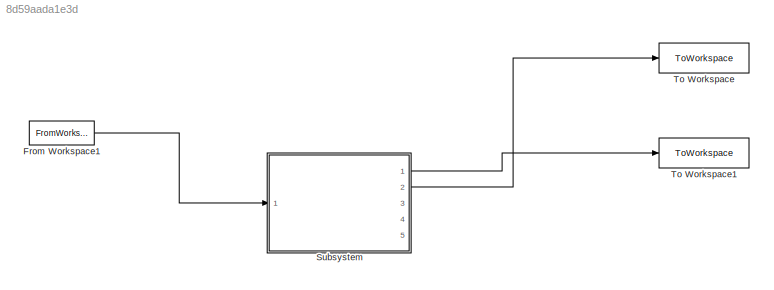
MODEL slx_8d59aada1e3d
KIND model
CONFIG AbsTol = 1e-07
CONFIG EnableMultiTasking = off
CONFIG FixedStep = auto
CONFIG MaxStep = auto
CONFIG MinStep = auto
CONFIG RelTol = 1e-3
CONFIG SampleTimeConstraint = Unconstrained
CONFIG SolverName = ode23t
CONFIG StartTime = 0.0
CONFIG StopTime = 5
WORKSPACE source: mxarray member
WORKSPACE l = 2
WORKSPACE wfb = [0 0 0]
BLOCK [FromWorkspace] From Workspace1
  SampleTime = dt
  VariableName = u_in
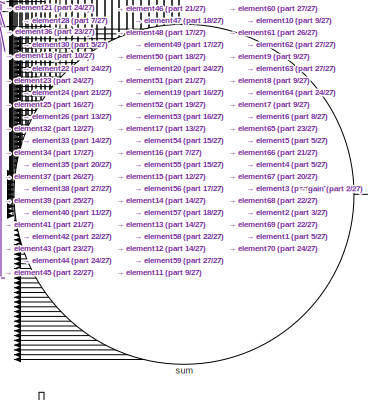
[diagram: Subsystem - part 1/27, top right region]
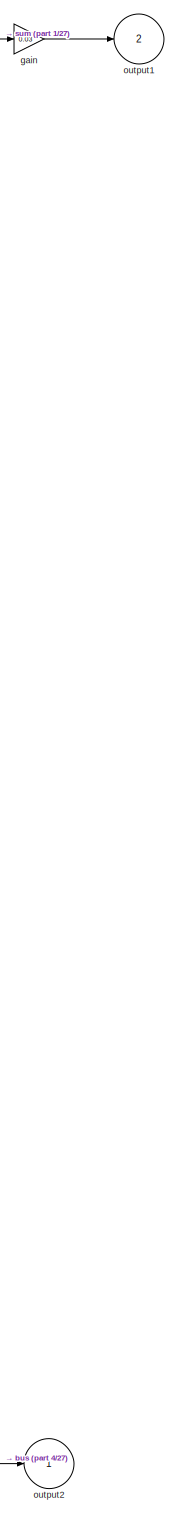
[diagram: Subsystem - part 2/27, top right region]
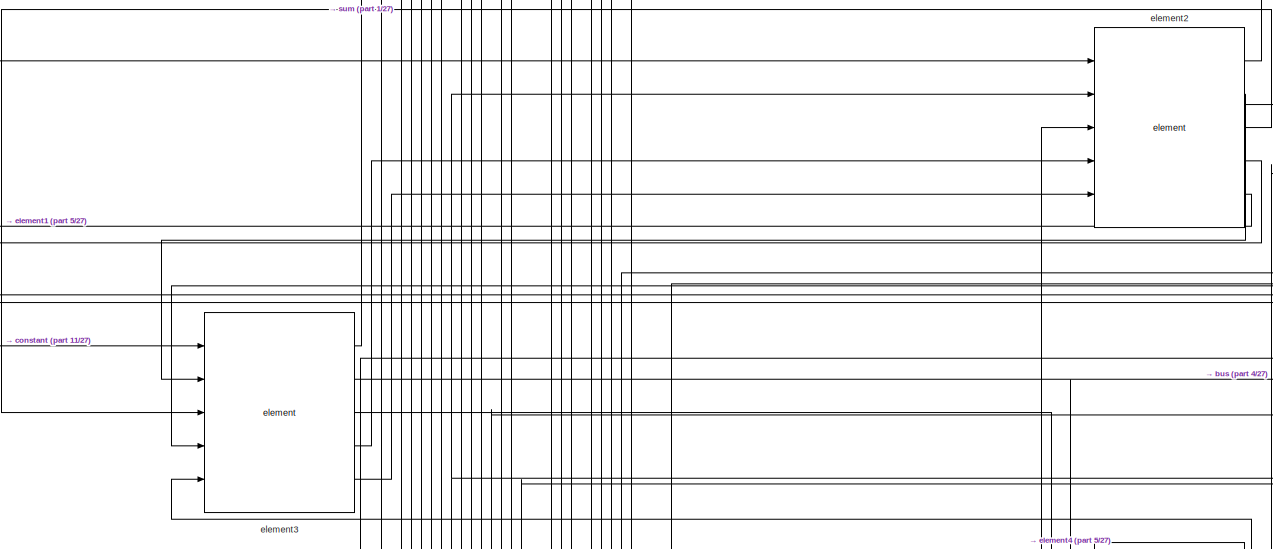
[diagram: Subsystem - part 3/27, top center region]
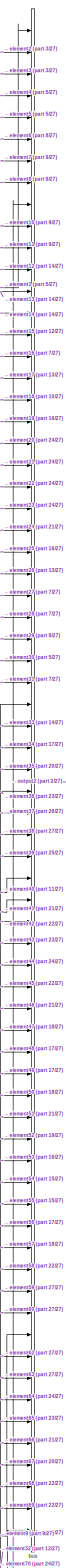
[diagram: Subsystem - part 4/27, top right region]
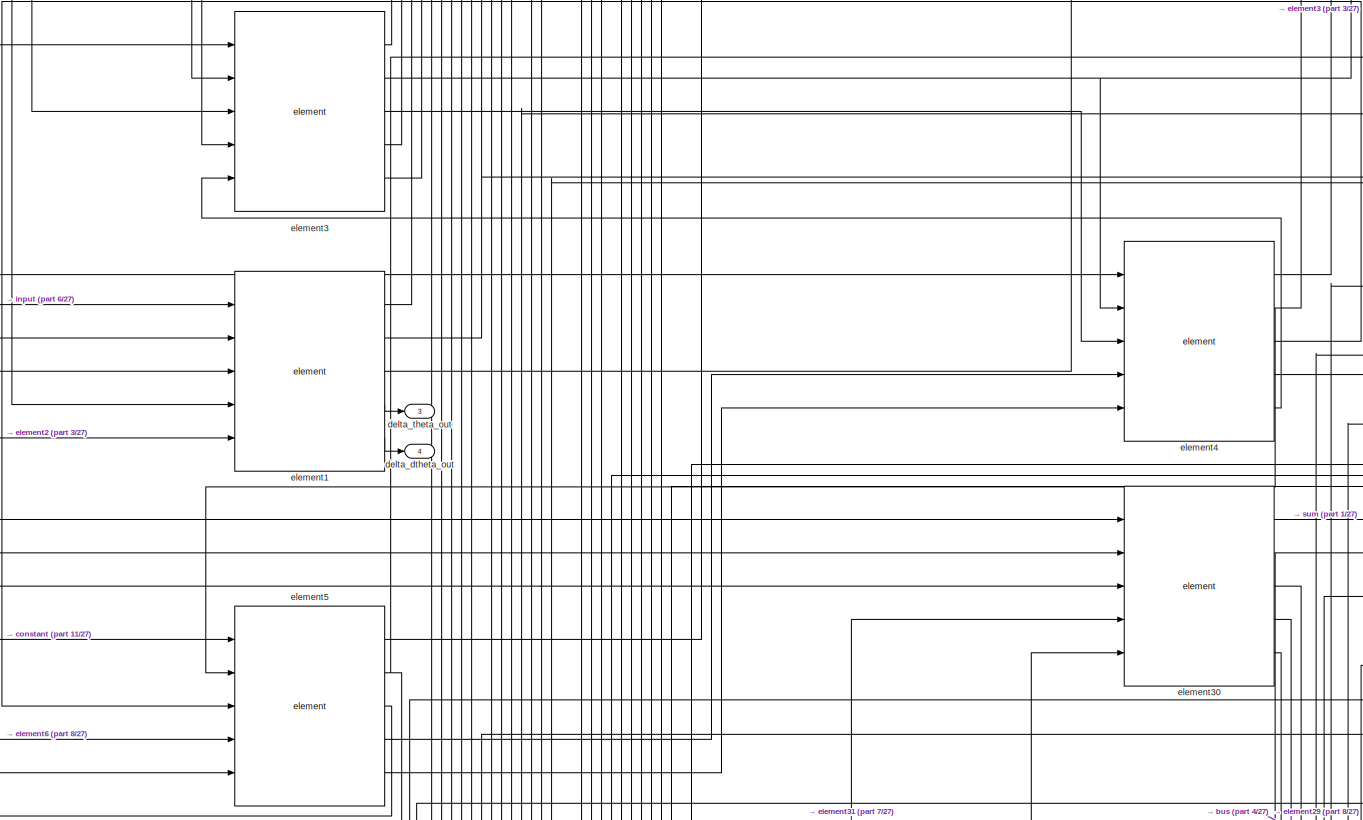
[diagram: Subsystem - part 5/27, top center region]
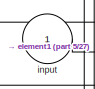
[diagram: Subsystem - part 6/27, top left region]
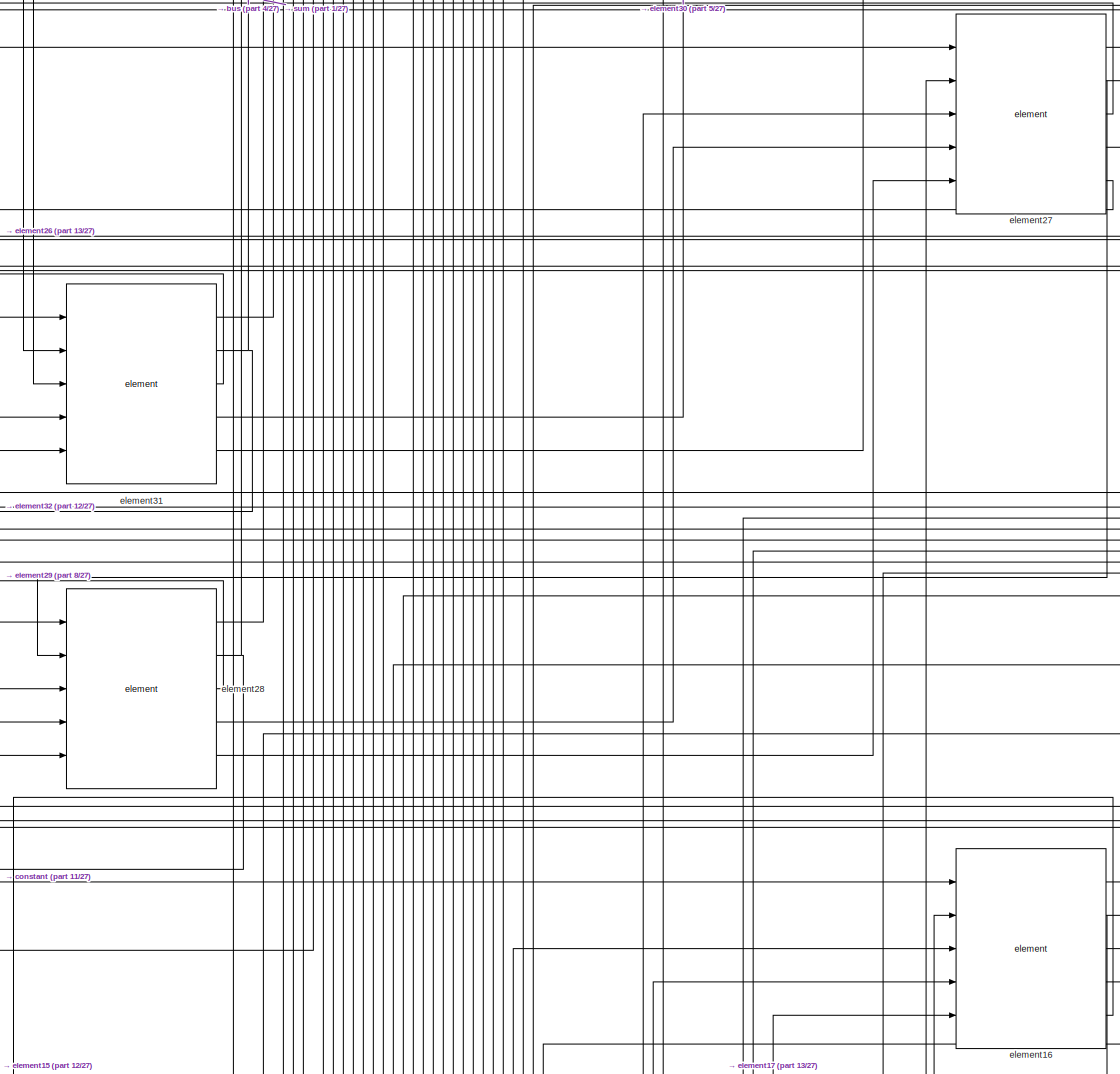
[diagram: Subsystem - part 7/27, top center region]
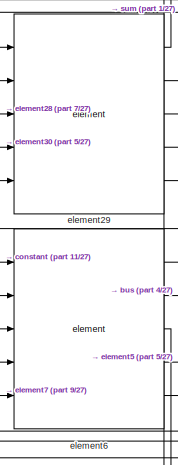
[diagram: Subsystem - part 8/27, top left region]
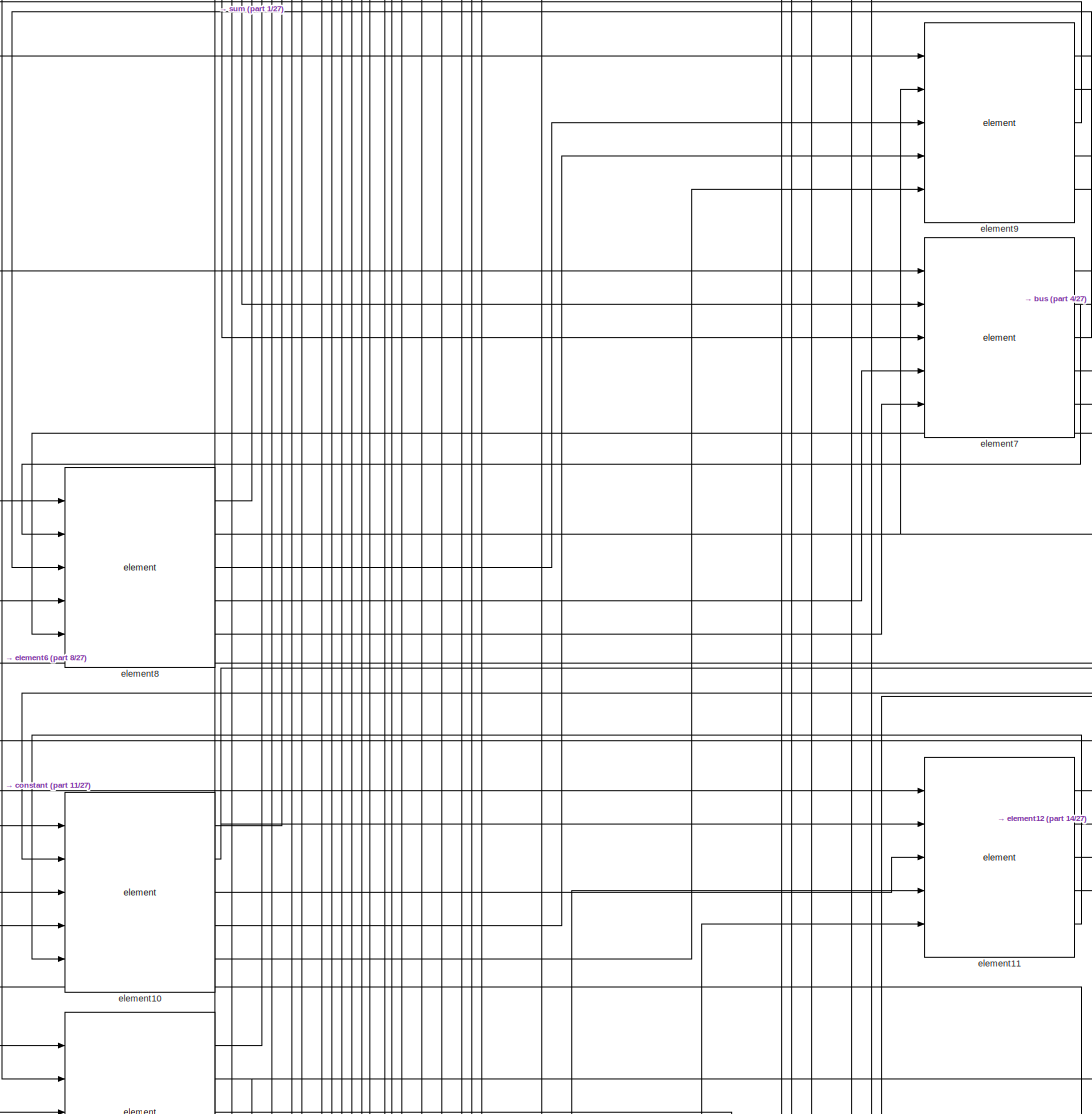
[diagram: Subsystem - part 9/27, top center region]
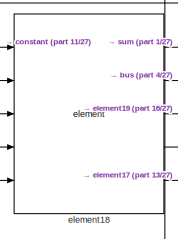
[diagram: Subsystem - part 10/27, top center region]
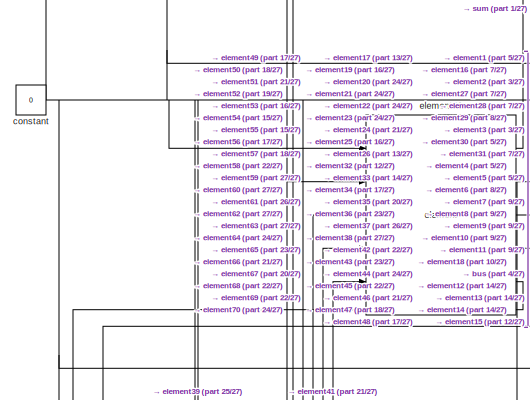
[diagram: Subsystem - part 11/27, top left region]
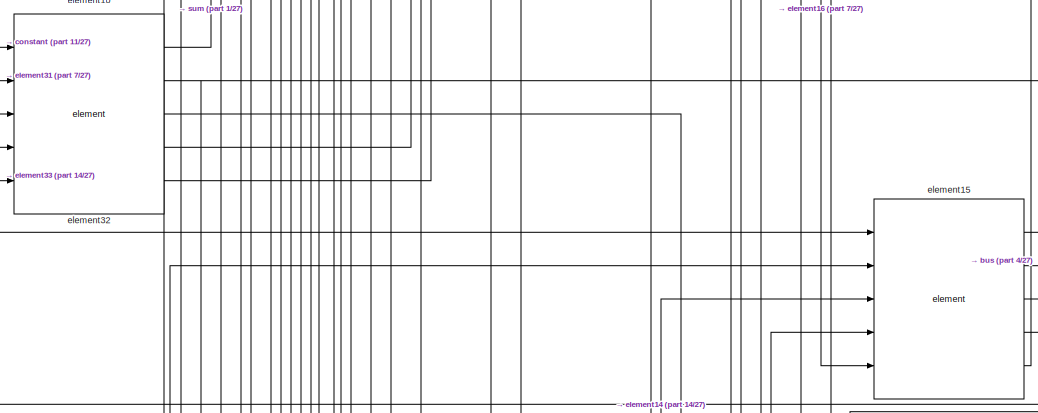
[diagram: Subsystem - part 12/27, central region]
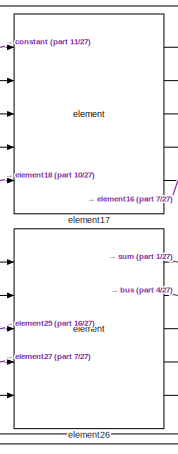
[diagram: Subsystem - part 13/27, central region]
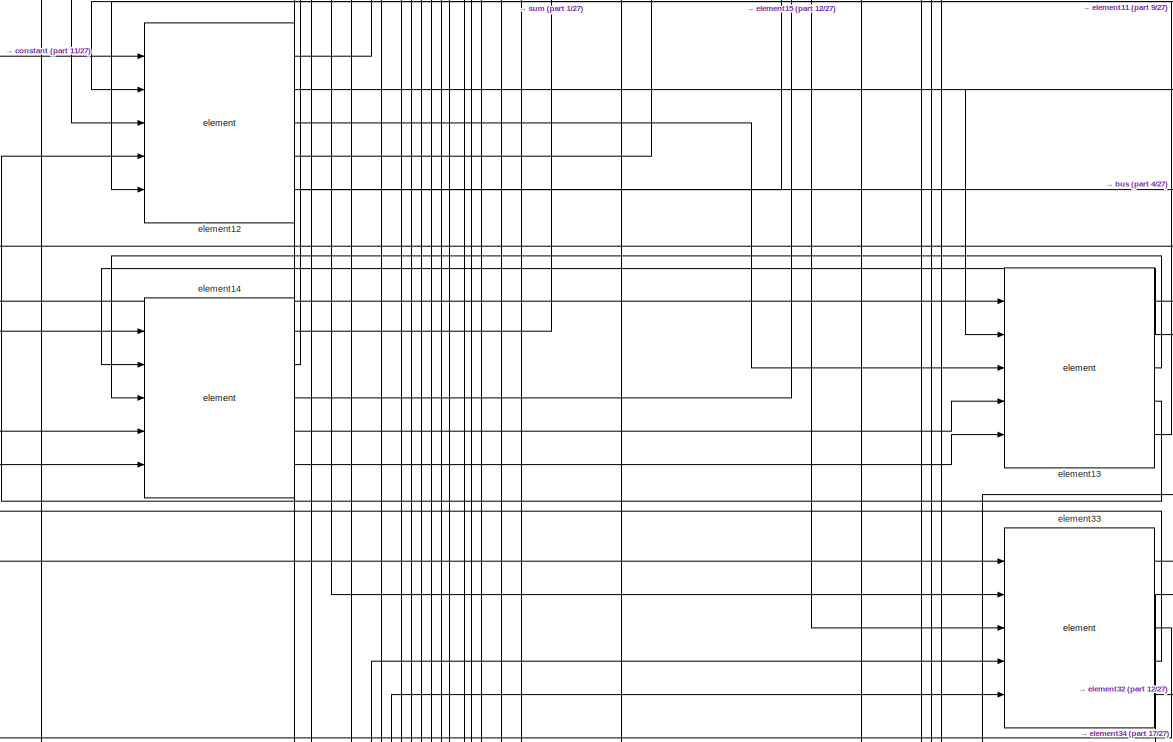
[diagram: Subsystem - part 14/27, central region]
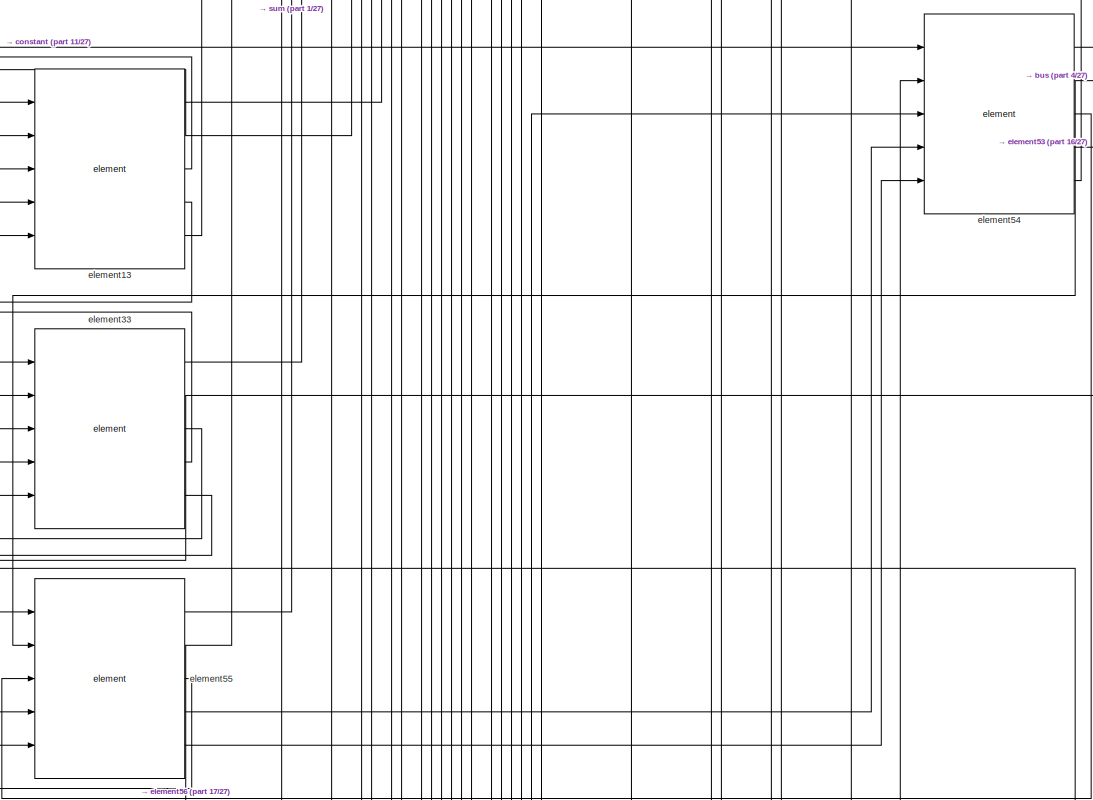
[diagram: Subsystem - part 15/27, central region]
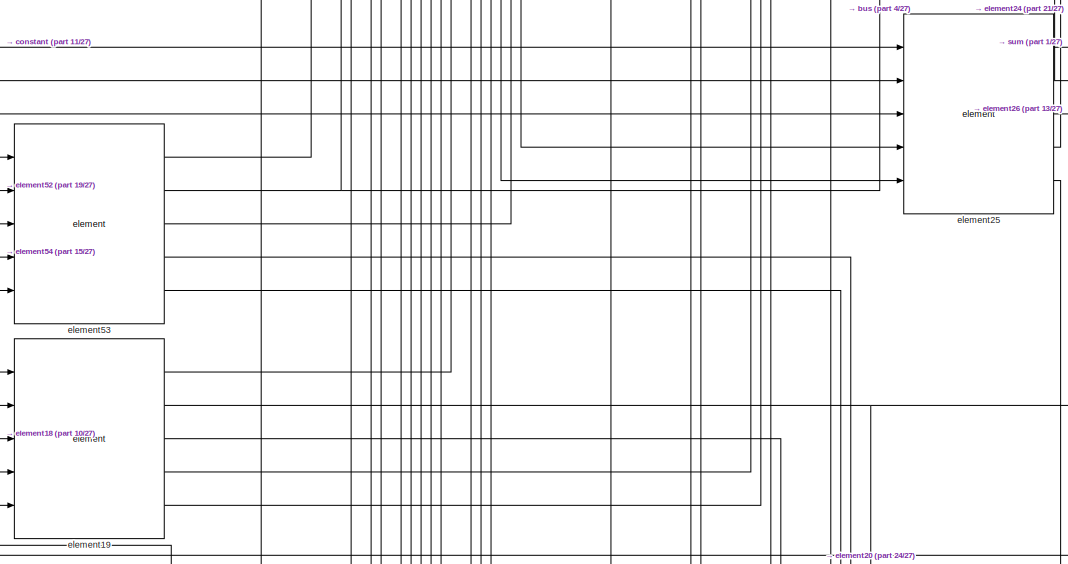
[diagram: Subsystem - part 16/27, central region]
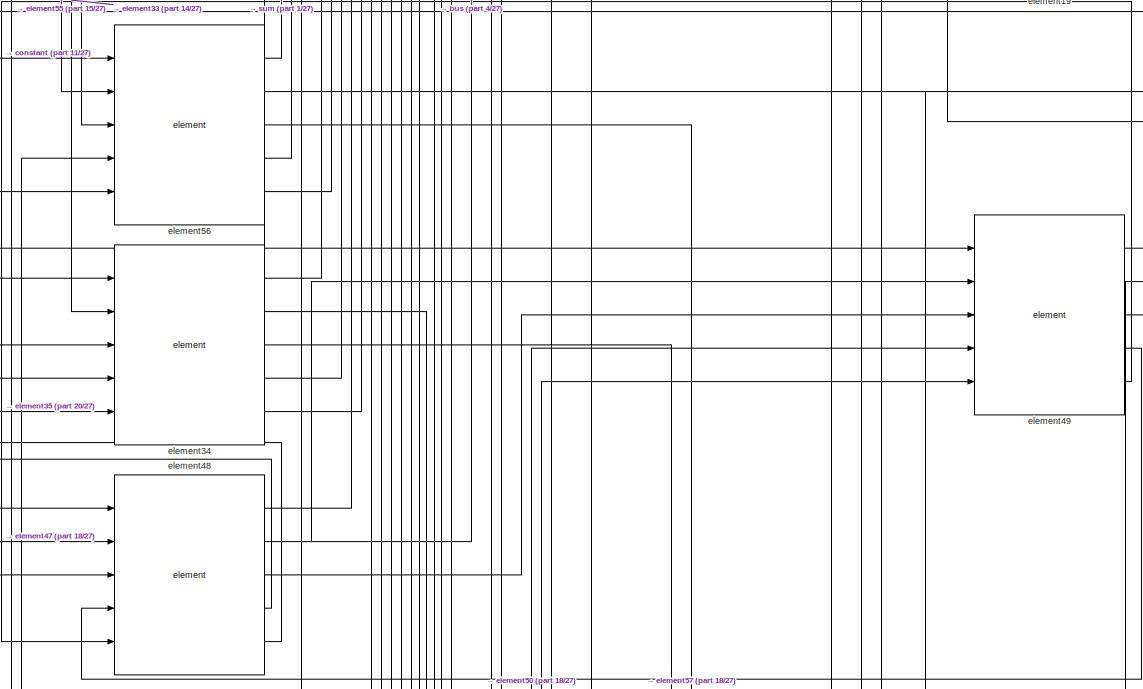
[diagram: Subsystem - part 17/27, central region]
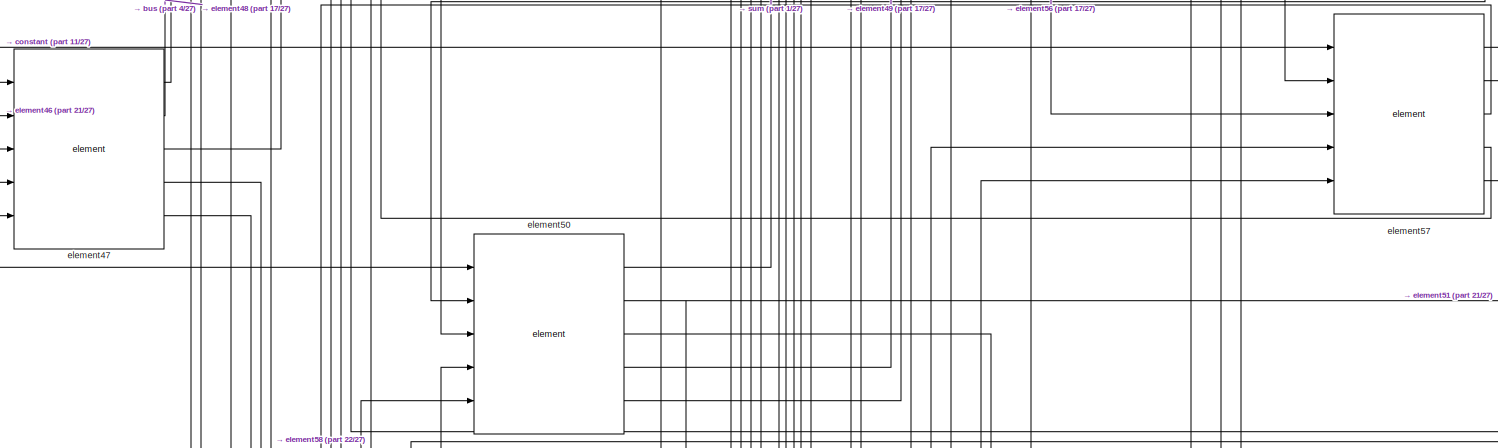
[diagram: Subsystem - part 18/27, middle left region]
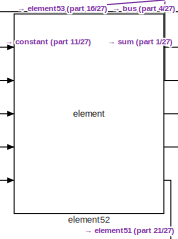
[diagram: Subsystem - part 19/27, central region]
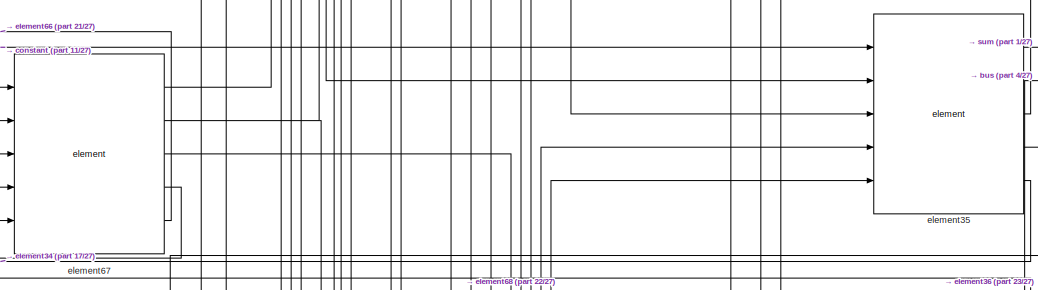
[diagram: Subsystem - part 20/27, central region]
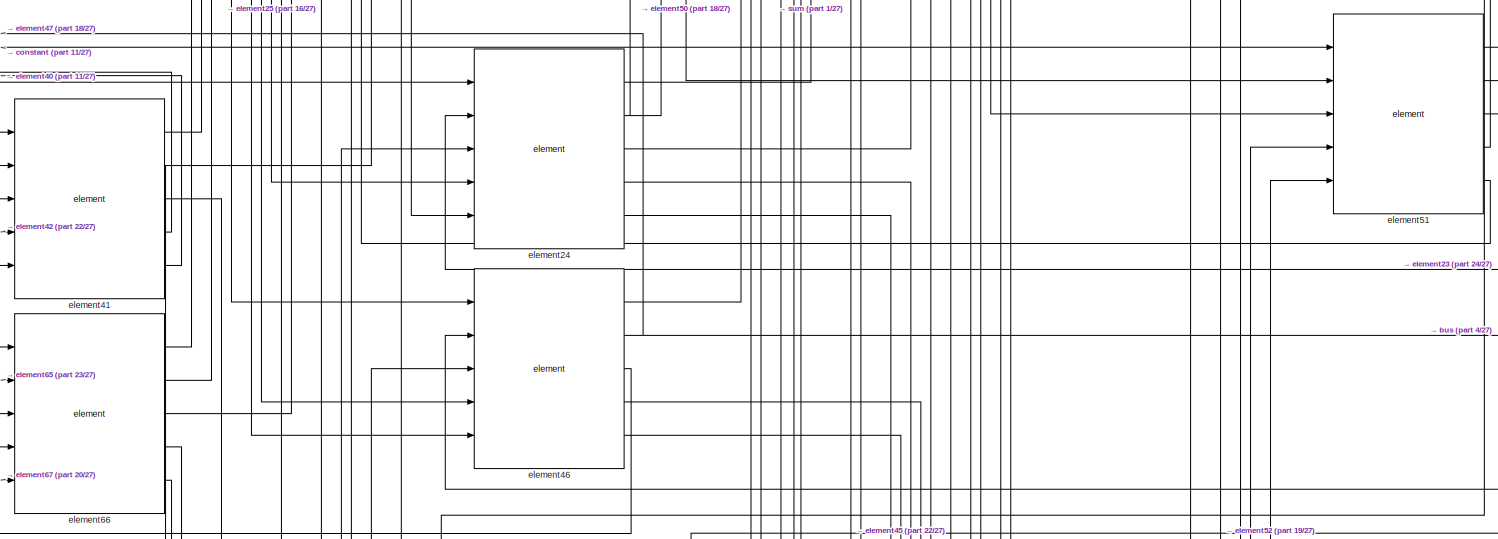
[diagram: Subsystem - part 21/27, middle left region]
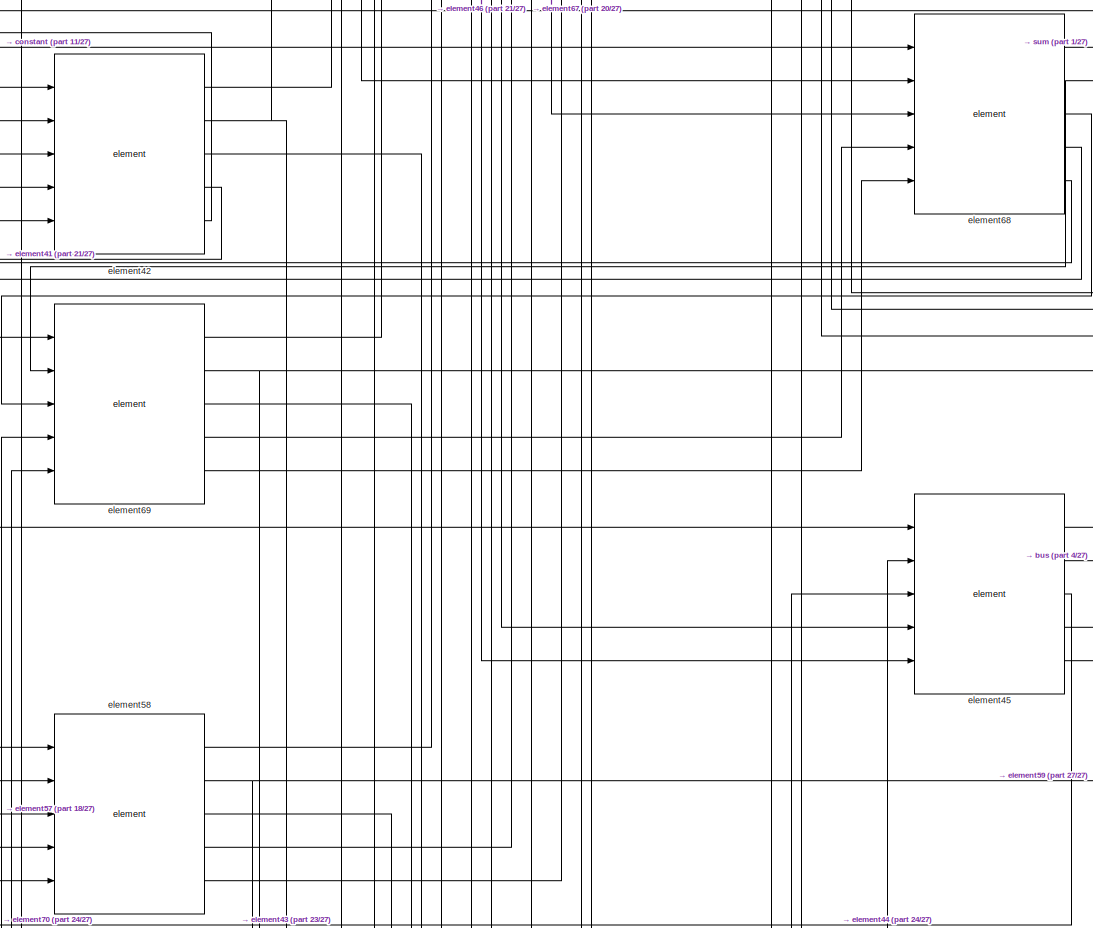
[diagram: Subsystem - part 22/27, bottom center region]
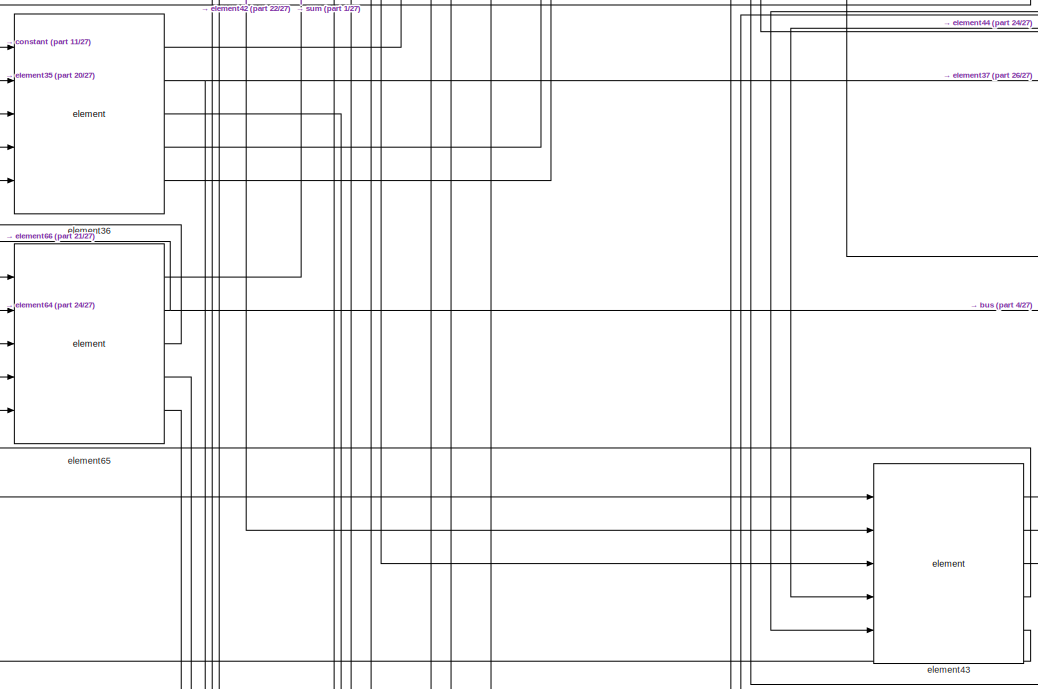
[diagram: Subsystem - part 23/27, bottom center region]
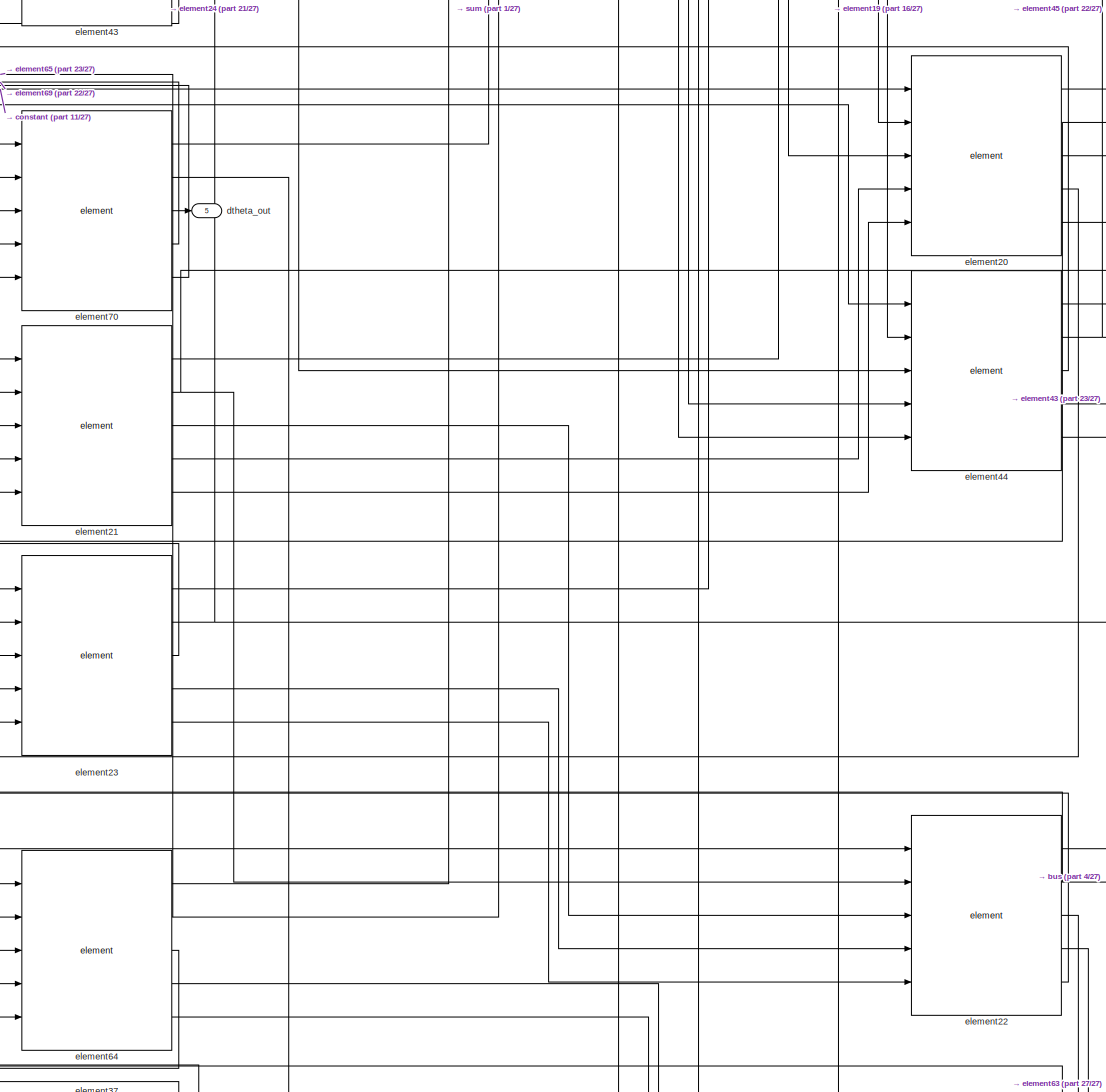
[diagram: Subsystem - part 24/27, bottom center region]
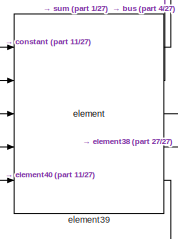
[diagram: Subsystem - part 25/27, bottom left region]
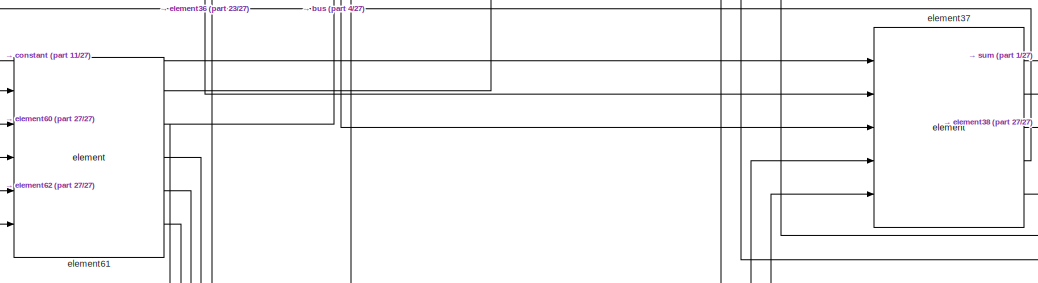
[diagram: Subsystem - part 26/27, bottom center region]
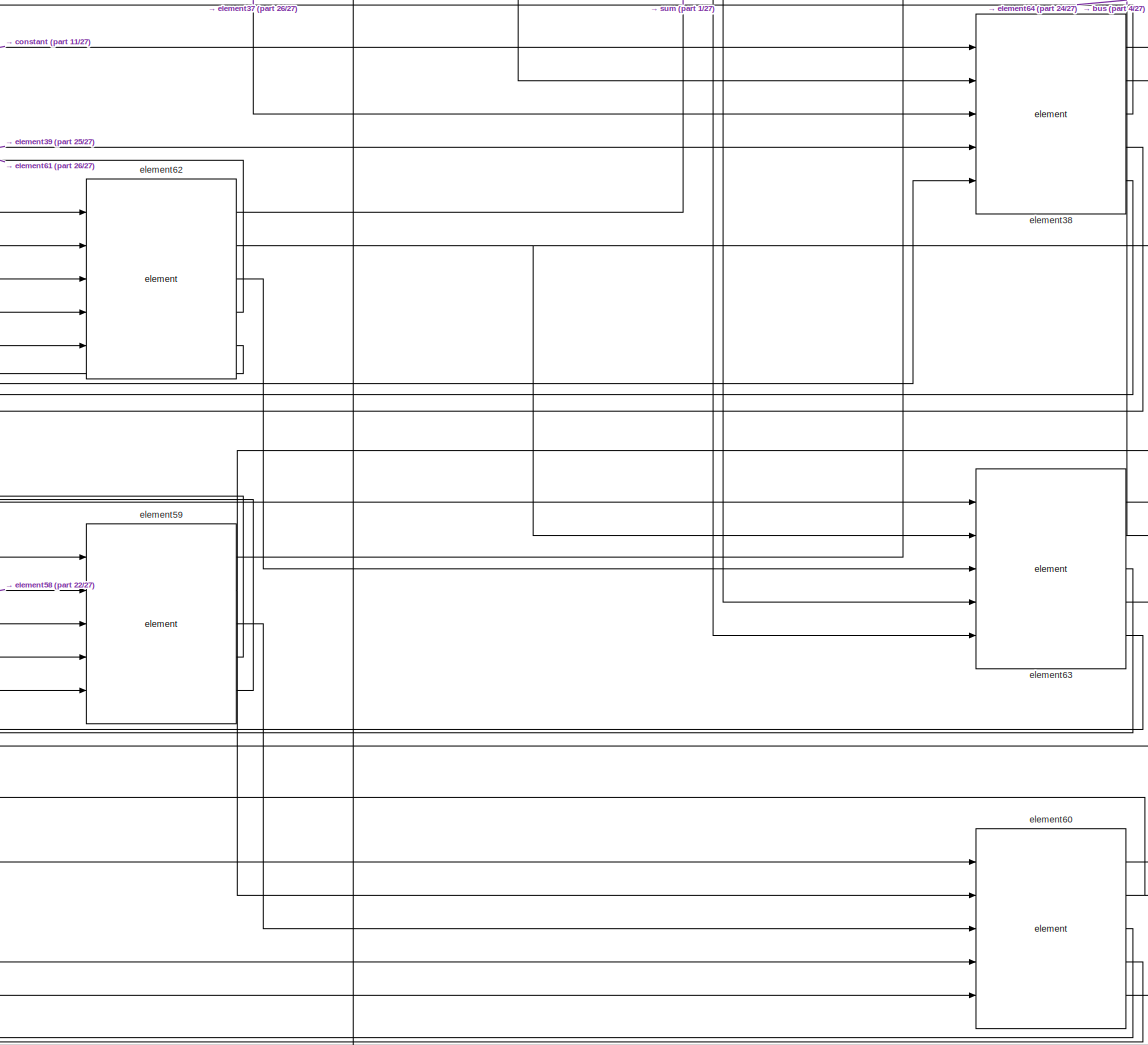
[diagram: Subsystem - part 27/27, bottom center region]
BLOCK [SubSystem] Subsystem
  Ports = [1, 5]
  RequestExecContextInheritance = off
BLOCK [BusCreator] Subsystem/bus
  DisplayOption = bar
  InheritFromInputs = on
  Inputs = 70
  Ports = [70, 1]
BLOCK [Constant] Subsystem/constant
  Value = 0
BLOCK [Outport] Subsystem/delta_dtheta_out
  Port = 4
BLOCK [Outport] Subsystem/delta_theta_out
  Port = 3
BLOCK [Outport] Subsystem/dtheta_out
  Port = 5
BLOCK [Reference] Subsystem/element1  REF=lib_beam/element  (lib defined in slx_f71b63bb8612)
  Ports = [5, 5]
  SourceBlock = lib_beam/element
BLOCK [Reference] Subsystem/element10  REF=lib_beam/element  (lib defined in slx_f71b63bb8612)
  Ports = [5, 5]
  SourceBlock = lib_beam/element
BLOCK [Reference] Subsystem/element11  REF=lib_beam/element  (lib defined in slx_f71b63bb8612)
  Ports = [5, 5]
  SourceBlock = lib_beam/element
BLOCK [Reference] Subsystem/element12  REF=lib_beam/element  (lib defined in slx_f71b63bb8612)
  Ports = [5, 5]
  SourceBlock = lib_beam/element
BLOCK [Reference] Subsystem/element13  REF=lib_beam/element  (lib defined in slx_f71b63bb8612)
  Ports = [5, 5]
  SourceBlock = lib_beam/element
BLOCK [Reference] Subsystem/element14  REF=lib_beam/element  (lib defined in slx_f71b63bb8612)
  Ports = [5, 5]
  SourceBlock = lib_beam/element
BLOCK [Reference] Subsystem/element15  REF=lib_beam/element  (lib defined in slx_f71b63bb8612)
  Ports = [5, 5]
  SourceBlock = lib_beam/element
BLOCK [Reference] Subsystem/element16  REF=lib_beam/element  (lib defined in slx_f71b63bb8612)
  Ports = [5, 5]
  SourceBlock = lib_beam/element
BLOCK [Reference] Subsystem/element17  REF=lib_beam/element  (lib defined in slx_f71b63bb8612)
  Ports = [5, 5]
  SourceBlock = lib_beam/element
BLOCK [Reference] Subsystem/element18  REF=lib_beam/element  (lib defined in slx_f71b63bb8612)
  Ports = [5, 5]
  SourceBlock = lib_beam/element
BLOCK [Reference] Subsystem/element19  REF=lib_beam/element  (lib defined in slx_f71b63bb8612)
  Ports = [5, 5]
  SourceBlock = lib_beam/element
BLOCK [Reference] Subsystem/element2  REF=lib_beam/element  (lib defined in slx_f71b63bb8612)
  Ports = [5, 5]
  SourceBlock = lib_beam/element
BLOCK [Reference] Subsystem/element20  REF=lib_beam/element  (lib defined in slx_f71b63bb8612)
  Ports = [5, 5]
  SourceBlock = lib_beam/element
BLOCK [Reference] Subsystem/element21  REF=lib_beam/element  (lib defined in slx_f71b63bb8612)
  Ports = [5, 5]
  SourceBlock = lib_beam/element
BLOCK [Reference] Subsystem/element22  REF=lib_beam/element  (lib defined in slx_f71b63bb8612)
  Ports = [5, 5]
  SourceBlock = lib_beam/element
BLOCK [Reference] Subsystem/element23  REF=lib_beam/element  (lib defined in slx_f71b63bb8612)
  Ports = [5, 5]
  SourceBlock = lib_beam/element
BLOCK [Reference] Subsystem/element24  REF=lib_beam/element  (lib defined in slx_f71b63bb8612)
  Ports = [5, 5]
  SourceBlock = lib_beam/element
BLOCK [Reference] Subsystem/element25  REF=lib_beam/element  (lib defined in slx_f71b63bb8612)
  Ports = [5, 5]
  SourceBlock = lib_beam/element
BLOCK [Reference] Subsystem/element26  REF=lib_beam/element  (lib defined in slx_f71b63bb8612)
  Ports = [5, 5]
  SourceBlock = lib_beam/element
BLOCK [Reference] Subsystem/element27  REF=lib_beam/element  (lib defined in slx_f71b63bb8612)
  Ports = [5, 5]
  SourceBlock = lib_beam/element
BLOCK [Reference] Subsystem/element28  REF=lib_beam/element  (lib defined in slx_f71b63bb8612)
  Ports = [5, 5]
  SourceBlock = lib_beam/element
BLOCK [Reference] Subsystem/element29  REF=lib_beam/element  (lib defined in slx_f71b63bb8612)
  Ports = [5, 5]
  SourceBlock = lib_beam/element
BLOCK [Reference] Subsystem/element3  REF=lib_beam/element  (lib defined in slx_f71b63bb8612)
  Ports = [5, 5]
  SourceBlock = lib_beam/element
BLOCK [Reference] Subsystem/element30  REF=lib_beam/element  (lib defined in slx_f71b63bb8612)
  Ports = [5, 5]
  SourceBlock = lib_beam/element
BLOCK [Reference] Subsystem/element31  REF=lib_beam/element  (lib defined in slx_f71b63bb8612)
  Ports = [5, 5]
  SourceBlock = lib_beam/element
BLOCK [Reference] Subsystem/element32  REF=lib_beam/element  (lib defined in slx_f71b63bb8612)
  Ports = [5, 5]
  SourceBlock = lib_beam/element
BLOCK [Reference] Subsystem/element33  REF=lib_beam/element  (lib defined in slx_f71b63bb8612)
  Ports = [5, 5]
  SourceBlock = lib_beam/element
BLOCK [Reference] Subsystem/element34  REF=lib_beam/element  (lib defined in slx_f71b63bb8612)
  Ports = [5, 5]
  SourceBlock = lib_beam/element
BLOCK [Reference] Subsystem/element35  REF=lib_beam/element  (lib defined in slx_f71b63bb8612)
  Ports = [5, 5]
  SourceBlock = lib_beam/element
BLOCK [Reference] Subsystem/element36  REF=lib_beam/element  (lib defined in slx_f71b63bb8612)
  Ports = [5, 5]
  SourceBlock = lib_beam/element
BLOCK [Reference] Subsystem/element37  REF=lib_beam/element  (lib defined in slx_f71b63bb8612)
  Ports = [5, 5]
  SourceBlock = lib_beam/element
BLOCK [Reference] Subsystem/element38  REF=lib_beam/element  (lib defined in slx_f71b63bb8612)
  Ports = [5, 5]
  SourceBlock = lib_beam/element
BLOCK [Reference] Subsystem/element39  REF=lib_beam/element  (lib defined in slx_f71b63bb8612)
  Ports = [5, 5]
  SourceBlock = lib_beam/element
BLOCK [Reference] Subsystem/element4  REF=lib_beam/element  (lib defined in slx_f71b63bb8612)
  Ports = [5, 5]
  SourceBlock = lib_beam/element
BLOCK [Reference] Subsystem/element40  REF=lib_beam/element  (lib defined in slx_f71b63bb8612)
  Ports = [5, 5]
  SourceBlock = lib_beam/element
BLOCK [Reference] Subsystem/element41  REF=lib_beam/element  (lib defined in slx_f71b63bb8612)
  Ports = [5, 5]
  SourceBlock = lib_beam/element
BLOCK [Reference] Subsystem/element42  REF=lib_beam/element  (lib defined in slx_f71b63bb8612)
  Ports = [5, 5]
  SourceBlock = lib_beam/element
BLOCK [Reference] Subsystem/element43  REF=lib_beam/element  (lib defined in slx_f71b63bb8612)
  Ports = [5, 5]
  SourceBlock = lib_beam/element
BLOCK [Reference] Subsystem/element44  REF=lib_beam/element  (lib defined in slx_f71b63bb8612)
  Ports = [5, 5]
  SourceBlock = lib_beam/element
BLOCK [Reference] Subsystem/element45  REF=lib_beam/element  (lib defined in slx_f71b63bb8612)
  Ports = [5, 5]
  SourceBlock = lib_beam/element
BLOCK [Reference] Subsystem/element46  REF=lib_beam/element  (lib defined in slx_f71b63bb8612)
  Ports = [5, 5]
  SourceBlock = lib_beam/element
BLOCK [Reference] Subsystem/element47  REF=lib_beam/element  (lib defined in slx_f71b63bb8612)
  Ports = [5, 5]
  SourceBlock = lib_beam/element
BLOCK [Reference] Subsystem/element48  REF=lib_beam/element  (lib defined in slx_f71b63bb8612)
  Ports = [5, 5]
  SourceBlock = lib_beam/element
BLOCK [Reference] Subsystem/element49  REF=lib_beam/element  (lib defined in slx_f71b63bb8612)
  Ports = [5, 5]
  SourceBlock = lib_beam/element
BLOCK [Reference] Subsystem/element5  REF=lib_beam/element  (lib defined in slx_f71b63bb8612)
  Ports = [5, 5]
  SourceBlock = lib_beam/element
BLOCK [Reference] Subsystem/element50  REF=lib_beam/element  (lib defined in slx_f71b63bb8612)
  Ports = [5, 5]
  SourceBlock = lib_beam/element
BLOCK [Reference] Subsystem/element51  REF=lib_beam/element  (lib defined in slx_f71b63bb8612)
  Ports = [5, 5]
  SourceBlock = lib_beam/element
BLOCK [Reference] Subsystem/element52  REF=lib_beam/element  (lib defined in slx_f71b63bb8612)
  Ports = [5, 5]
  SourceBlock = lib_beam/element
BLOCK [Reference] Subsystem/element53  REF=lib_beam/element  (lib defined in slx_f71b63bb8612)
  Ports = [5, 5]
  SourceBlock = lib_beam/element
BLOCK [Reference] Subsystem/element54  REF=lib_beam/element  (lib defined in slx_f71b63bb8612)
  Ports = [5, 5]
  SourceBlock = lib_beam/element
BLOCK [Reference] Subsystem/element55  REF=lib_beam/element  (lib defined in slx_f71b63bb8612)
  Ports = [5, 5]
  SourceBlock = lib_beam/element
BLOCK [Reference] Subsystem/element56  REF=lib_beam/element  (lib defined in slx_f71b63bb8612)
  Ports = [5, 5]
  SourceBlock = lib_beam/element
BLOCK [Reference] Subsystem/element57  REF=lib_beam/element  (lib defined in slx_f71b63bb8612)
  Ports = [5, 5]
  SourceBlock = lib_beam/element
BLOCK [Reference] Subsystem/element58  REF=lib_beam/element  (lib defined in slx_f71b63bb8612)
  Ports = [5, 5]
  SourceBlock = lib_beam/element
BLOCK [Reference] Subsystem/element59  REF=lib_beam/element  (lib defined in slx_f71b63bb8612)
  Ports = [5, 5]
  SourceBlock = lib_beam/element
BLOCK [Reference] Subsystem/element6  REF=lib_beam/element  (lib defined in slx_f71b63bb8612)
  Ports = [5, 5]
  SourceBlock = lib_beam/element
BLOCK [Reference] Subsystem/element60  REF=lib_beam/element  (lib defined in slx_f71b63bb8612)
  Ports = [5, 5]
  SourceBlock = lib_beam/element
BLOCK [Reference] Subsystem/element61  REF=lib_beam/element  (lib defined in slx_f71b63bb8612)
  Ports = [5, 5]
  SourceBlock = lib_beam/element
BLOCK [Reference] Subsystem/element62  REF=lib_beam/element  (lib defined in slx_f71b63bb8612)
  Ports = [5, 5]
  SourceBlock = lib_beam/element
BLOCK [Reference] Subsystem/element63  REF=lib_beam/element  (lib defined in slx_f71b63bb8612)
  Ports = [5, 5]
  SourceBlock = lib_beam/element
BLOCK [Reference] Subsystem/element64  REF=lib_beam/element  (lib defined in slx_f71b63bb8612)
  Ports = [5, 5]
  SourceBlock = lib_beam/element
BLOCK [Reference] Subsystem/element65  REF=lib_beam/element  (lib defined in slx_f71b63bb8612)
  Ports = [5, 5]
  SourceBlock = lib_beam/element
BLOCK [Reference] Subsystem/element66  REF=lib_beam/element  (lib defined in slx_f71b63bb8612)
  Ports = [5, 5]
  SourceBlock = lib_beam/element
BLOCK [Reference] Subsystem/element67  REF=lib_beam/element  (lib defined in slx_f71b63bb8612)
  Ports = [5, 5]
  SourceBlock = lib_beam/element
BLOCK [Reference] Subsystem/element68  REF=lib_beam/element  (lib defined in slx_f71b63bb8612)
  Ports = [5, 5]
  SourceBlock = lib_beam/element
BLOCK [Reference] Subsystem/element69  REF=lib_beam/element  (lib defined in slx_f71b63bb8612)
  Ports = [5, 5]
  SourceBlock = lib_beam/element
BLOCK [Reference] Subsystem/element7  REF=lib_beam/element  (lib defined in slx_f71b63bb8612)
  Ports = [5, 5]
  SourceBlock = lib_beam/element
BLOCK [Reference] Subsystem/element70  REF=lib_beam/element  (lib defined in slx_f71b63bb8612)
  Ports = [5, 5]
  SourceBlock = lib_beam/element
BLOCK [Reference] Subsystem/element8  REF=lib_beam/element  (lib defined in slx_f71b63bb8612)
  Ports = [5, 5]
  SourceBlock = lib_beam/element
BLOCK [Reference] Subsystem/element9  REF=lib_beam/element  (lib defined in slx_f71b63bb8612)
  Ports = [5, 5]
  SourceBlock = lib_beam/element
BLOCK [Gain] Subsystem/gain
  Gain = 0.03
BLOCK [Inport] Subsystem/input
BLOCK [Outport] Subsystem/output1
  Port = 2
BLOCK [Outport] Subsystem/output2
BLOCK [Sum] Subsystem/sum
  Inputs = 70
  Ports = [70, 1]
BLOCK [ToWorkspace] To Workspace
  FixptAsFi = on
  MaxDataPoints = inf
  Ports = [1]
  SampleTime = dt
  SaveFormat = Timeseries
  VariableName = y
BLOCK [ToWorkspace] To Workspace1
  FixptAsFi = on
  MaxDataPoints = inf
  Ports = [1]
  SampleTime = dt
  SaveFormat = Timeseries
  VariableName = theta
LINE From Workspace1:1 -> Subsystem:1
LINE Subsystem/bus:1 -> Subsystem/output2:1
NET Subsystem/constant:1 -> Subsystem/element10:1, Subsystem/element11:1, Subsystem/element12:1, Subsystem/element13:1, Subsystem/element14:1, Subsystem/element15:1, Subsystem/element16:1, Subsystem/element17:1, Subsystem/element18:1, Subsystem/element19:1, Subsystem/element1:2, Subsystem/element1:3, Subsystem/element20:1, Subsystem/element21:1, Subsystem/element22:1, Subsystem/element23:1, Subsystem/element24:1, Subsystem/element25:1, Subsystem/element26:1, Subsystem/element27:1, Subsystem/element28:1, Subsystem/element29:1, Subsystem/element2:1, Subsystem/element30:1, Subsystem/element31:1, Subsystem/element32:1, Subsystem/element33:1, Subsystem/element34:1, Subsystem/element35:1, Subsystem/element36:1, Subsystem/element37:1, Subsystem/element38:1, Subsystem/element39:1, Subsystem/element3:1, Subsystem/element40:1, Subsystem/element41:1, Subsystem/element42:1, Subsystem/element43:1, Subsystem/element44:1, Subsystem/element45:1, Subsystem/element46:1, Subsystem/element47:1, Subsystem/element48:1, Subsystem/element49:1, Subsystem/element4:1, Subsystem/element50:1, Subsystem/element51:1, Subsystem/element52:1, Subsystem/element53:1, Subsystem/element54:1, Subsystem/element55:1, Subsystem/element56:1, Subsystem/element57:1, Subsystem/element58:1, Subsystem/element59:1, Subsystem/element5:1, Subsystem/element60:1, Subsystem/element61:1, Subsystem/element62:1, Subsystem/element63:1, Subsystem/element64:1, Subsystem/element65:1, Subsystem/element66:1, Subsystem/element67:1, Subsystem/element68:1, Subsystem/element69:1, Subsystem/element6:1, Subsystem/element70:1, Subsystem/element70:4, Subsystem/element70:5, Subsystem/element7:1, Subsystem/element8:1, Subsystem/element9:1
LINE Subsystem/element10:1 -> Subsystem/sum:10
NET Subsystem/element10:2 -> Subsystem/bus:10, Subsystem/element11:2
LINE Subsystem/element10:3 -> Subsystem/element11:3
LINE Subsystem/element10:4 -> Subsystem/element9:4
LINE Subsystem/element10:5 -> Subsystem/element9:5
LINE Subsystem/element11:1 -> Subsystem/sum:11
NET Subsystem/element11:2 -> Subsystem/bus:11, Subsystem/element12:2
LINE Subsystem/element11:3 -> Subsystem/element12:3
LINE Subsystem/element11:4 -> Subsystem/element10:4
LINE Subsystem/element11:5 -> Subsystem/element10:5
LINE Subsystem/element12:1 -> Subsystem/sum:12
NET Subsystem/element12:2 -> Subsystem/bus:12, Subsystem/element13:2
LINE Subsystem/element12:3 -> Subsystem/element13:3
LINE Subsystem/element12:4 -> Subsystem/element11:4
LINE Subsystem/element12:5 -> Subsystem/element11:5
LINE Subsystem/element13:1 -> Subsystem/sum:13
NET Subsystem/element13:2 -> Subsystem/bus:13, Subsystem/element14:2
LINE Subsystem/element13:3 -> Subsystem/element14:3
LINE Subsystem/element13:4 -> Subsystem/element12:4
LINE Subsystem/element13:5 -> Subsystem/element12:5
LINE Subsystem/element14:1 -> Subsystem/sum:14
NET Subsystem/element14:2 -> Subsystem/bus:14, Subsystem/element15:2
LINE Subsystem/element14:3 -> Subsystem/element15:3
LINE Subsystem/element14:4 -> Subsystem/element13:4
LINE Subsystem/element14:5 -> Subsystem/element13:5
LINE Subsystem/element15:1 -> Subsystem/sum:15
NET Subsystem/element15:2 -> Subsystem/bus:15, Subsystem/element16:2
LINE Subsystem/element15:3 -> Subsystem/element16:3
LINE Subsystem/element15:4 -> Subsystem/element14:4
LINE Subsystem/element15:5 -> Subsystem/element14:5
LINE Subsystem/element16:1 -> Subsystem/sum:16
NET Subsystem/element16:2 -> Subsystem/bus:16, Subsystem/element17:2
LINE Subsystem/element16:3 -> Subsystem/element17:3
LINE Subsystem/element16:4 -> Subsystem/element15:4
LINE Subsystem/element16:5 -> Subsystem/element15:5
LINE Subsystem/element17:1 -> Subsystem/sum:17
NET Subsystem/element17:2 -> Subsystem/bus:17, Subsystem/element18:2
LINE Subsystem/element17:3 -> Subsystem/element18:3
LINE Subsystem/element17:4 -> Subsystem/element16:4
LINE Subsystem/element17:5 -> Subsystem/element16:5
LINE Subsystem/element18:1 -> Subsystem/sum:18
NET Subsystem/element18:2 -> Subsystem/bus:18, Subsystem/element19:2
LINE Subsystem/element18:3 -> Subsystem/element19:3
LINE Subsystem/element18:4 -> Subsystem/element17:4
LINE Subsystem/element18:5 -> Subsystem/element17:5
LINE Subsystem/element19:1 -> Subsystem/sum:19
NET Subsystem/element19:2 -> Subsystem/bus:19, Subsystem/element20:2
LINE Subsystem/element19:3 -> Subsystem/element20:3
LINE Subsystem/element19:4 -> Subsystem/element18:4
LINE Subsystem/element19:5 -> Subsystem/element18:5
LINE Subsystem/element1:1 -> Subsystem/sum:1
NET Subsystem/element1:2 -> Subsystem/bus:1, Subsystem/element2:2
LINE Subsystem/element1:3 -> Subsystem/element2:3
LINE Subsystem/element1:4 -> Subsystem/delta_theta_out:1
LINE Subsystem/element1:5 -> Subsystem/delta_dtheta_out:1
LINE Subsystem/element20:1 -> Subsystem/sum:20
NET Subsystem/element20:2 -> Subsystem/bus:20, Subsystem/element21:2
LINE Subsystem/element20:3 -> Subsystem/element21:3
LINE Subsystem/element20:4 -> Subsystem/element19:4
LINE Subsystem/element20:5 -> Subsystem/element19:5
LINE Subsystem/element21:1 -> Subsystem/sum:21
NET Subsystem/element21:2 -> Subsystem/bus:21, Subsystem/element22:2
LINE Subsystem/element21:3 -> Subsystem/element22:3
LINE Subsystem/element21:4 -> Subsystem/element20:4
LINE Subsystem/element21:5 -> Subsystem/element20:5
LINE Subsystem/element22:1 -> Subsystem/sum:22
NET Subsystem/element22:2 -> Subsystem/bus:22, Subsystem/element23:2
LINE Subsystem/element22:3 -> Subsystem/element23:3
LINE Subsystem/element22:4 -> Subsystem/element21:4
LINE Subsystem/element22:5 -> Subsystem/element21:5
LINE Subsystem/element23:1 -> Subsystem/sum:23
NET Subsystem/element23:2 -> Subsystem/bus:23, Subsystem/element24:2
LINE Subsystem/element23:3 -> Subsystem/element24:3
LINE Subsystem/element23:4 -> Subsystem/element22:4
LINE Subsystem/element23:5 -> Subsystem/element22:5
LINE Subsystem/element24:1 -> Subsystem/sum:24
NET Subsystem/element24:2 -> Subsystem/bus:24, Subsystem/element25:2
LINE Subsystem/element24:3 -> Subsystem/element25:3
LINE Subsystem/element24:4 -> Subsystem/element23:4
LINE Subsystem/element24:5 -> Subsystem/element23:5
LINE Subsystem/element25:1 -> Subsystem/sum:25
NET Subsystem/element25:2 -> Subsystem/bus:25, Subsystem/element26:2
LINE Subsystem/element25:3 -> Subsystem/element26:3
LINE Subsystem/element25:4 -> Subsystem/element24:4
LINE Subsystem/element25:5 -> Subsystem/element24:5
LINE Subsystem/element26:1 -> Subsystem/sum:26
NET Subsystem/element26:2 -> Subsystem/bus:26, Subsystem/element27:2
LINE Subsystem/element26:3 -> Subsystem/element27:3
LINE Subsystem/element26:4 -> Subsystem/element25:4
LINE Subsystem/element26:5 -> Subsystem/element25:5
LINE Subsystem/element27:1 -> Subsystem/sum:27
NET Subsystem/element27:2 -> Subsystem/bus:27, Subsystem/element28:2
LINE Subsystem/element27:3 -> Subsystem/element28:3
LINE Subsystem/element27:4 -> Subsystem/element26:4
LINE Subsystem/element27:5 -> Subsystem/element26:5
LINE Subsystem/element28:1 -> Subsystem/sum:28
NET Subsystem/element28:2 -> Subsystem/bus:28, Subsystem/element29:2
LINE Subsystem/element28:3 -> Subsystem/element29:3
LINE Subsystem/element28:4 -> Subsystem/element27:4
LINE Subsystem/element28:5 -> Subsystem/element27:5
LINE Subsystem/element29:1 -> Subsystem/sum:29
NET Subsystem/element29:2 -> Subsystem/bus:29, Subsystem/element30:2
LINE Subsystem/element29:3 -> Subsystem/element30:3
LINE Subsystem/element29:4 -> Subsystem/element28:4
LINE Subsystem/element29:5 -> Subsystem/element28:5
LINE Subsystem/element2:1 -> Subsystem/sum:2
NET Subsystem/element2:2 -> Subsystem/bus:2, Subsystem/element3:2
LINE Subsystem/element2:3 -> Subsystem/element3:3
LINE Subsystem/element2:4 -> Subsystem/element1:4
LINE Subsystem/element2:5 -> Subsystem/element1:5
LINE Subsystem/element30:1 -> Subsystem/sum:30
NET Subsystem/element30:2 -> Subsystem/bus:30, Subsystem/element31:2
LINE Subsystem/element30:3 -> Subsystem/element31:3
LINE Subsystem/element30:4 -> Subsystem/element29:4
LINE Subsystem/element30:5 -> Subsystem/element29:5
LINE Subsystem/element31:1 -> Subsystem/sum:31
NET Subsystem/element31:2 -> Subsystem/bus:31, Subsystem/element32:2
LINE Subsystem/element31:3 -> Subsystem/element32:3
LINE Subsystem/element31:4 -> Subsystem/element30:4
LINE Subsystem/element31:5 -> Subsystem/element30:5
LINE Subsystem/element32:1 -> Subsystem/sum:32
NET Subsystem/element32:2 -> Subsystem/bus:32, Subsystem/element33:2
LINE Subsystem/element32:3 -> Subsystem/element33:3
LINE Subsystem/element32:4 -> Subsystem/element31:4
LINE Subsystem/element32:5 -> Subsystem/element31:5
LINE Subsystem/element33:1 -> Subsystem/sum:33
NET Subsystem/element33:2 -> Subsystem/bus:33, Subsystem/element34:2
LINE Subsystem/element33:3 -> Subsystem/element34:3
LINE Subsystem/element33:4 -> Subsystem/element32:4
LINE Subsystem/element33:5 -> Subsystem/element32:5
LINE Subsystem/element34:1 -> Subsystem/sum:34
NET Subsystem/element34:2 -> Subsystem/bus:34, Subsystem/element35:2
LINE Subsystem/element34:3 -> Subsystem/element35:3
LINE Subsystem/element34:4 -> Subsystem/element33:4
LINE Subsystem/element34:5 -> Subsystem/element33:5
LINE Subsystem/element35:1 -> Subsystem/sum:35
NET Subsystem/element35:2 -> Subsystem/bus:35, Subsystem/element36:2
LINE Subsystem/element35:3 -> Subsystem/element36:3
LINE Subsystem/element35:4 -> Subsystem/element34:4
LINE Subsystem/element35:5 -> Subsystem/element34:5
LINE Subsystem/element36:1 -> Subsystem/sum:36
NET Subsystem/element36:2 -> Subsystem/bus:36, Subsystem/element37:2
LINE Subsystem/element36:3 -> Subsystem/element37:3
LINE Subsystem/element36:4 -> Subsystem/element35:4
LINE Subsystem/element36:5 -> Subsystem/element35:5
LINE Subsystem/element37:1 -> Subsystem/sum:37
NET Subsystem/element37:2 -> Subsystem/bus:37, Subsystem/element38:2
LINE Subsystem/element37:3 -> Subsystem/element38:3
LINE Subsystem/element37:4 -> Subsystem/element36:4
LINE Subsystem/element37:5 -> Subsystem/element36:5
LINE Subsystem/element38:1 -> Subsystem/sum:38
NET Subsystem/element38:2 -> Subsystem/bus:38, Subsystem/element39:2
LINE Subsystem/element38:3 -> Subsystem/element39:3
LINE Subsystem/element38:4 -> Subsystem/element37:4
LINE Subsystem/element38:5 -> Subsystem/element37:5
LINE Subsystem/element39:1 -> Subsystem/sum:39
NET Subsystem/element39:2 -> Subsystem/bus:39, Subsystem/element40:2
LINE Subsystem/element39:3 -> Subsystem/element40:3
LINE Subsystem/element39:4 -> Subsystem/element38:4
LINE Subsystem/element39:5 -> Subsystem/element38:5
LINE Subsystem/element3:1 -> Subsystem/sum:3
NET Subsystem/element3:2 -> Subsystem/bus:3, Subsystem/element4:2
LINE Subsystem/element3:3 -> Subsystem/element4:3
LINE Subsystem/element3:4 -> Subsystem/element2:4
LINE Subsystem/element3:5 -> Subsystem/element2:5
LINE Subsystem/element40:1 -> Subsystem/sum:40
NET Subsystem/element40:2 -> Subsystem/bus:40, Subsystem/element41:2
LINE Subsystem/element40:3 -> Subsystem/element41:3
LINE Subsystem/element40:4 -> Subsystem/element39:4
LINE Subsystem/element40:5 -> Subsystem/element39:5
LINE Subsystem/element41:1 -> Subsystem/sum:41
NET Subsystem/element41:2 -> Subsystem/bus:41, Subsystem/element42:2
LINE Subsystem/element41:3 -> Subsystem/element42:3
LINE Subsystem/element41:4 -> Subsystem/element40:4
LINE Subsystem/element41:5 -> Subsystem/element40:5
LINE Subsystem/element42:1 -> Subsystem/sum:42
NET Subsystem/element42:2 -> Subsystem/bus:42, Subsystem/element43:2
LINE Subsystem/element42:3 -> Subsystem/element43:3
LINE Subsystem/element42:4 -> Subsystem/element41:4
LINE Subsystem/element42:5 -> Subsystem/element41:5
LINE Subsystem/element43:1 -> Subsystem/sum:43
NET Subsystem/element43:2 -> Subsystem/bus:43, Subsystem/element44:2
LINE Subsystem/element43:3 -> Subsystem/element44:3
LINE Subsystem/element43:4 -> Subsystem/element42:4
LINE Subsystem/element43:5 -> Subsystem/element42:5
LINE Subsystem/element44:1 -> Subsystem/sum:44
NET Subsystem/element44:2 -> Subsystem/bus:44, Subsystem/element45:2
LINE Subsystem/element44:3 -> Subsystem/element45:3
LINE Subsystem/element44:4 -> Subsystem/element43:4
LINE Subsystem/element44:5 -> Subsystem/element43:5
LINE Subsystem/element45:1 -> Subsystem/sum:45
NET Subsystem/element45:2 -> Subsystem/bus:45, Subsystem/element46:2
LINE Subsystem/element45:3 -> Subsystem/element46:3
LINE Subsystem/element45:4 -> Subsystem/element44:4
LINE Subsystem/element45:5 -> Subsystem/element44:5
LINE Subsystem/element46:1 -> Subsystem/sum:46
NET Subsystem/element46:2 -> Subsystem/bus:46, Subsystem/element47:2
LINE Subsystem/element46:3 -> Subsystem/element47:3
LINE Subsystem/element46:4 -> Subsystem/element45:4
LINE Subsystem/element46:5 -> Subsystem/element45:5
LINE Subsystem/element47:1 -> Subsystem/sum:47
NET Subsystem/element47:2 -> Subsystem/bus:47, Subsystem/element48:2
LINE Subsystem/element47:3 -> Subsystem/element48:3
LINE Subsystem/element47:4 -> Subsystem/element46:4
LINE Subsystem/element47:5 -> Subsystem/element46:5
LINE Subsystem/element48:1 -> Subsystem/sum:48
NET Subsystem/element48:2 -> Subsystem/bus:48, Subsystem/element49:2
LINE Subsystem/element48:3 -> Subsystem/element49:3
LINE Subsystem/element48:4 -> Subsystem/element47:4
LINE Subsystem/element48:5 -> Subsystem/element47:5
LINE Subsystem/element49:1 -> Subsystem/sum:49
NET Subsystem/element49:2 -> Subsystem/bus:49, Subsystem/element50:2
LINE Subsystem/element49:3 -> Subsystem/element50:3
LINE Subsystem/element49:4 -> Subsystem/element48:4
LINE Subsystem/element49:5 -> Subsystem/element48:5
LINE Subsystem/element4:1 -> Subsystem/sum:4
NET Subsystem/element4:2 -> Subsystem/bus:4, Subsystem/element5:2
LINE Subsystem/element4:3 -> Subsystem/element5:3
LINE Subsystem/element4:4 -> Subsystem/element3:4
LINE Subsystem/element4:5 -> Subsystem/element3:5
LINE Subsystem/element50:1 -> Subsystem/sum:50
NET Subsystem/element50:2 -> Subsystem/bus:50, Subsystem/element51:2
LINE Subsystem/element50:3 -> Subsystem/element51:3
LINE Subsystem/element50:4 -> Subsystem/element49:4
LINE Subsystem/element50:5 -> Subsystem/element49:5
LINE Subsystem/element51:1 -> Subsystem/sum:51
NET Subsystem/element51:2 -> Subsystem/bus:51, Subsystem/element52:2
LINE Subsystem/element51:3 -> Subsystem/element52:3
LINE Subsystem/element51:4 -> Subsystem/element50:4
LINE Subsystem/element51:5 -> Subsystem/element50:5
LINE Subsystem/element52:1 -> Subsystem/sum:52
NET Subsystem/element52:2 -> Subsystem/bus:52, Subsystem/element53:2
LINE Subsystem/element52:3 -> Subsystem/element53:3
LINE Subsystem/element52:4 -> Subsystem/element51:4
LINE Subsystem/element52:5 -> Subsystem/element51:5
LINE Subsystem/element53:1 -> Subsystem/sum:53
NET Subsystem/element53:2 -> Subsystem/bus:53, Subsystem/element54:2
LINE Subsystem/element53:3 -> Subsystem/element54:3
LINE Subsystem/element53:4 -> Subsystem/element52:4
LINE Subsystem/element53:5 -> Subsystem/element52:5
LINE Subsystem/element54:1 -> Subsystem/sum:54
NET Subsystem/element54:2 -> Subsystem/bus:54, Subsystem/element55:2
LINE Subsystem/element54:3 -> Subsystem/element55:3
LINE Subsystem/element54:4 -> Subsystem/element53:4
LINE Subsystem/element54:5 -> Subsystem/element53:5
LINE Subsystem/element55:1 -> Subsystem/sum:55
NET Subsystem/element55:2 -> Subsystem/bus:55, Subsystem/element56:2
LINE Subsystem/element55:3 -> Subsystem/element56:3
LINE Subsystem/element55:4 -> Subsystem/element54:4
LINE Subsystem/element55:5 -> Subsystem/element54:5
LINE Subsystem/element56:1 -> Subsystem/sum:56
NET Subsystem/element56:2 -> Subsystem/bus:56, Subsystem/element57:2
LINE Subsystem/element56:3 -> Subsystem/element57:3
LINE Subsystem/element56:4 -> Subsystem/element55:4
LINE Subsystem/element56:5 -> Subsystem/element55:5
LINE Subsystem/element57:1 -> Subsystem/sum:57
NET Subsystem/element57:2 -> Subsystem/bus:57, Subsystem/element58:2
LINE Subsystem/element57:3 -> Subsystem/element58:3
LINE Subsystem/element57:4 -> Subsystem/element56:4
LINE Subsystem/element57:5 -> Subsystem/element56:5
LINE Subsystem/element58:1 -> Subsystem/sum:58
NET Subsystem/element58:2 -> Subsystem/bus:58, Subsystem/element59:2
LINE Subsystem/element58:3 -> Subsystem/element59:3
LINE Subsystem/element58:4 -> Subsystem/element57:4
LINE Subsystem/element58:5 -> Subsystem/element57:5
LINE Subsystem/element59:1 -> Subsystem/sum:59
NET Subsystem/element59:2 -> Subsystem/bus:59, Subsystem/element60:2
LINE Subsystem/element59:3 -> Subsystem/element60:3
LINE Subsystem/element59:4 -> Subsystem/element58:4
LINE Subsystem/element59:5 -> Subsystem/element58:5
LINE Subsystem/element5:1 -> Subsystem/sum:5
NET Subsystem/element5:2 -> Subsystem/bus:5, Subsystem/element6:2
LINE Subsystem/element5:3 -> Subsystem/element6:3
LINE Subsystem/element5:4 -> Subsystem/element4:4
LINE Subsystem/element5:5 -> Subsystem/element4:5
LINE Subsystem/element60:1 -> Subsystem/sum:60
NET Subsystem/element60:2 -> Subsystem/bus:60, Subsystem/element61:2
LINE Subsystem/element60:3 -> Subsystem/element61:3
LINE Subsystem/element60:4 -> Subsystem/element59:4
LINE Subsystem/element60:5 -> Subsystem/element59:5
LINE Subsystem/element61:1 -> Subsystem/sum:61
NET Subsystem/element61:2 -> Subsystem/bus:61, Subsystem/element62:2
LINE Subsystem/element61:3 -> Subsystem/element62:3
LINE Subsystem/element61:4 -> Subsystem/element60:4
LINE Subsystem/element61:5 -> Subsystem/element60:5
LINE Subsystem/element62:1 -> Subsystem/sum:62
NET Subsystem/element62:2 -> Subsystem/bus:62, Subsystem/element63:2
LINE Subsystem/element62:3 -> Subsystem/element63:3
LINE Subsystem/element62:4 -> Subsystem/element61:4
LINE Subsystem/element62:5 -> Subsystem/element61:5
LINE Subsystem/element63:1 -> Subsystem/sum:63
NET Subsystem/element63:2 -> Subsystem/bus:63, Subsystem/element64:2
LINE Subsystem/element63:3 -> Subsystem/element64:3
LINE Subsystem/element63:4 -> Subsystem/element62:4
LINE Subsystem/element63:5 -> Subsystem/element62:5
LINE Subsystem/element64:1 -> Subsystem/sum:64
NET Subsystem/element64:2 -> Subsystem/bus:64, Subsystem/element65:2
LINE Subsystem/element64:3 -> Subsystem/element65:3
LINE Subsystem/element64:4 -> Subsystem/element63:4
LINE Subsystem/element64:5 -> Subsystem/element63:5
LINE Subsystem/element65:1 -> Subsystem/sum:65
NET Subsystem/element65:2 -> Subsystem/bus:65, Subsystem/element66:2
LINE Subsystem/element65:3 -> Subsystem/element66:3
LINE Subsystem/element65:4 -> Subsystem/element64:4
LINE Subsystem/element65:5 -> Subsystem/element64:5
LINE Subsystem/element66:1 -> Subsystem/sum:66
NET Subsystem/element66:2 -> Subsystem/bus:66, Subsystem/element67:2
LINE Subsystem/element66:3 -> Subsystem/element67:3
LINE Subsystem/element66:4 -> Subsystem/element65:4
LINE Subsystem/element66:5 -> Subsystem/element65:5
LINE Subsystem/element67:1 -> Subsystem/sum:67
NET Subsystem/element67:2 -> Subsystem/bus:67, Subsystem/element68:2
LINE Subsystem/element67:3 -> Subsystem/element68:3
LINE Subsystem/element67:4 -> Subsystem/element66:4
LINE Subsystem/element67:5 -> Subsystem/element66:5
LINE Subsystem/element68:1 -> Subsystem/sum:68
NET Subsystem/element68:2 -> Subsystem/bus:68, Subsystem/element69:2
LINE Subsystem/element68:3 -> Subsystem/element69:3
LINE Subsystem/element68:4 -> Subsystem/element67:4
LINE Subsystem/element68:5 -> Subsystem/element67:5
LINE Subsystem/element69:1 -> Subsystem/sum:69
NET Subsystem/element69:2 -> Subsystem/bus:69, Subsystem/element70:2
LINE Subsystem/element69:3 -> Subsystem/element70:3
LINE Subsystem/element69:4 -> Subsystem/element68:4
LINE Subsystem/element69:5 -> Subsystem/element68:5
LINE Subsystem/element6:1 -> Subsystem/sum:6
NET Subsystem/element6:2 -> Subsystem/bus:6, Subsystem/element7:2
LINE Subsystem/element6:3 -> Subsystem/element7:3
LINE Subsystem/element6:4 -> Subsystem/element5:4
LINE Subsystem/element6:5 -> Subsystem/element5:5
LINE Subsystem/element70:1 -> Subsystem/sum:70
LINE Subsystem/element70:2 -> Subsystem/bus:70
LINE Subsystem/element70:3 -> Subsystem/dtheta_out:1
LINE Subsystem/element70:4 -> Subsystem/element69:4
LINE Subsystem/element70:5 -> Subsystem/element69:5
LINE Subsystem/element7:1 -> Subsystem/sum:7
NET Subsystem/element7:2 -> Subsystem/bus:7, Subsystem/element8:2
LINE Subsystem/element7:3 -> Subsystem/element8:3
LINE Subsystem/element7:4 -> Subsystem/element6:4
LINE Subsystem/element7:5 -> Subsystem/element6:5
LINE Subsystem/element8:1 -> Subsystem/sum:8
NET Subsystem/element8:2 -> Subsystem/bus:8, Subsystem/element9:2
LINE Subsystem/element8:3 -> Subsystem/element9:3
LINE Subsystem/element8:4 -> Subsystem/element7:4
LINE Subsystem/element8:5 -> Subsystem/element7:5
LINE Subsystem/element9:1 -> Subsystem/sum:9
NET Subsystem/element9:2 -> Subsystem/bus:9, Subsystem/element10:2
LINE Subsystem/element9:3 -> Subsystem/element10:3
LINE Subsystem/element9:4 -> Subsystem/element8:4
LINE Subsystem/element9:5 -> Subsystem/element8:5
LINE Subsystem/gain:1 -> Subsystem/output1:1
LINE Subsystem/input:1 -> Subsystem/element1:1
LINE Subsystem/sum:1 -> Subsystem/gain:1
LINE Subsystem:1 -> To Workspace1:1
LINE Subsystem:2 -> To Workspace:1
note: NET lines group one-source signal fan-out (src -> all destinations, sorted); 1:1 wires keep LINE
